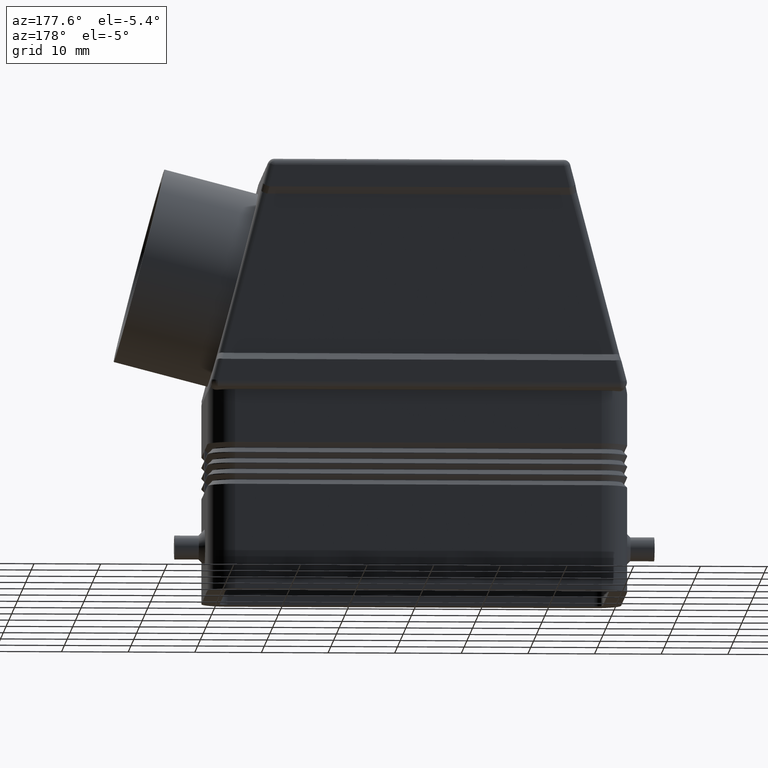
[diagram: clean part render]
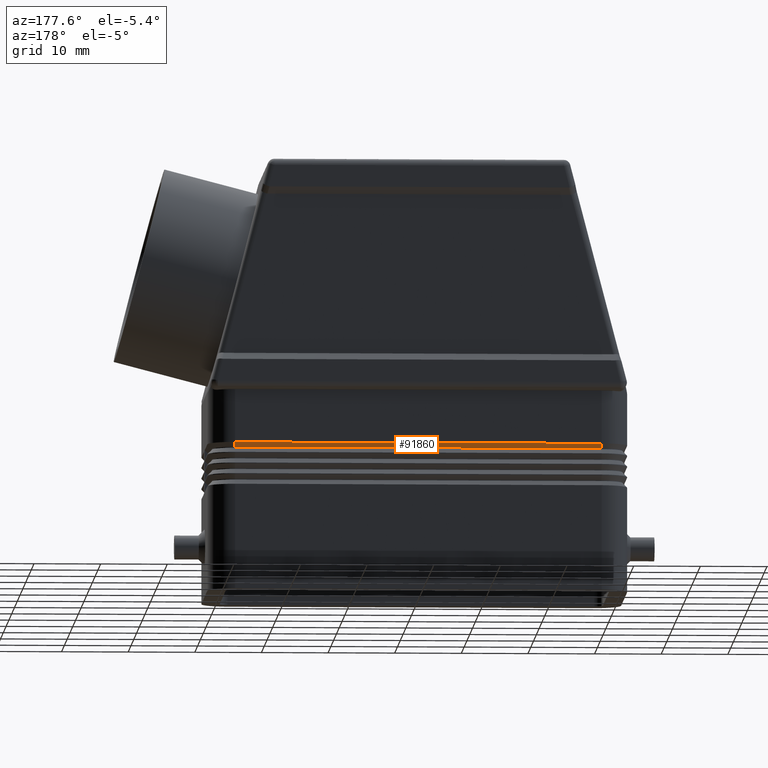
[diagram: same view with one face highlighted and labeled with its STEP entity id]
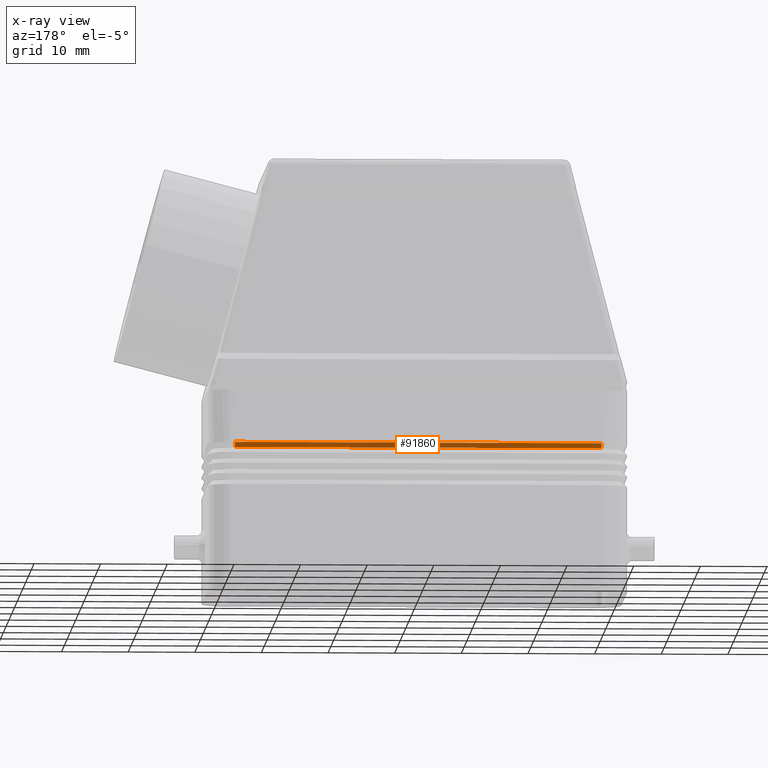
[diagram: x-ray of the same camera — body ghosted, the highlighted face saturated]
A machine part, auxiliary view. The second image highlights one B-rep face of the part: STEP entity #91860.
The next image is the same camera in x-ray: the body ghosted, the highlighted face saturated — about 0% of this face is hidden behind the body in this view.
In plain terms, the highlighted planar face has unit normal (0, 0.7071, -0.7071).
Its self-contained STEP definition (entity closure, byte-faithful):
#51600=CARTESIAN_POINT('',(27.5,14.7,22.05));
#51610=VERTEX_POINT('',#51600);
#91300=CARTESIAN_POINT('',(27.5,14.,21.35));
#91310=DIRECTION('',(3.588783E-15,0.707106781186548,0.707106781186547));
#91320=VECTOR('',#91310,0.989949493661167);
#91330=LINE('',#91300,#91320);
#91340=CARTESIAN_POINT('',(27.5,14.,21.35));
#91350=VERTEX_POINT('',#91340);
#91360=EDGE_CURVE('',#91350,#51610,#91330,.T.);
#91560=CARTESIAN_POINT('',(-13.75,14.35,21.7));
#91570=DIRECTION('',(2.854714E-17,0.707106781186546,-0.707106781186549))
;
#91580=DIRECTION('',(-1.,2.01858762774817E-17,-2.01858762774818E-17));
#91590=AXIS2_PLACEMENT_3D('',#91560,#91570,#91580);
#91600=PLANE('',#91590);
#91610=CARTESIAN_POINT('',(-27.5,14.7,22.05));
#91620=DIRECTION('',(1.,0.,0.));
#91630=VECTOR('',#91620,55.);
#91640=LINE('',#91610,#91630);
#91650=CARTESIAN_POINT('',(-27.5,14.7,22.05));
#91660=VERTEX_POINT('',#91650);
#91670=EDGE_CURVE('',#91660,#51610,#91640,.T.);
#91680=ORIENTED_EDGE('',*,*,#91670,.T.);
#91690=CARTESIAN_POINT('',(-27.5,14.,21.35));
#91700=DIRECTION('',(0.,0.707106781186542,0.707106781186553));
#91710=VECTOR('',#91700,0.989949493661158);
#91720=LINE('',#91690,#91710);
#91730=CARTESIAN_POINT('',(-27.5,14.,21.35));
#91740=VERTEX_POINT('',#91730);
#91750=EDGE_CURVE('',#91740,#91660,#91720,.T.);
#91760=ORIENTED_EDGE('',*,*,#91750,.T.);
#91770=CARTESIAN_POINT('',(-27.5,14.,21.35));
#91780=DIRECTION('',(1.,0.,0.));
#91790=VECTOR('',#91780,55.);
#91800=LINE('',#91770,#91790);
#91810=EDGE_CURVE('',#91740,#91350,#91800,.T.);
#91820=ORIENTED_EDGE('',*,*,#91810,.F.);
#91830=ORIENTED_EDGE('',*,*,#91360,.F.);
#91840=EDGE_LOOP('',(#91830,#91820,#91760,#91680));
#91850=FACE_OUTER_BOUND('',#91840,.T.);
#91860=ADVANCED_FACE('',(#91850),#91600,.T.);